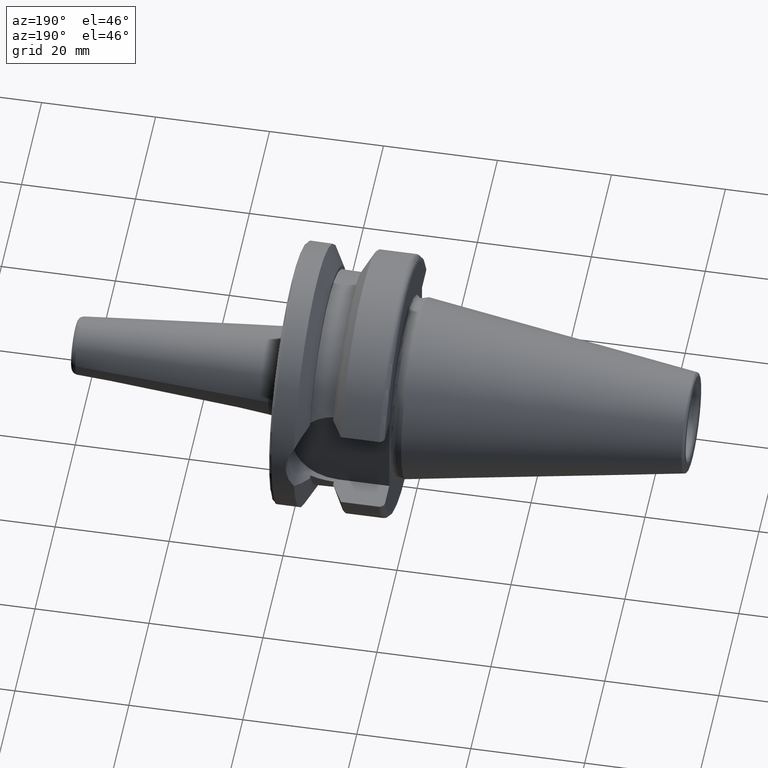
[diagram: clean part render]
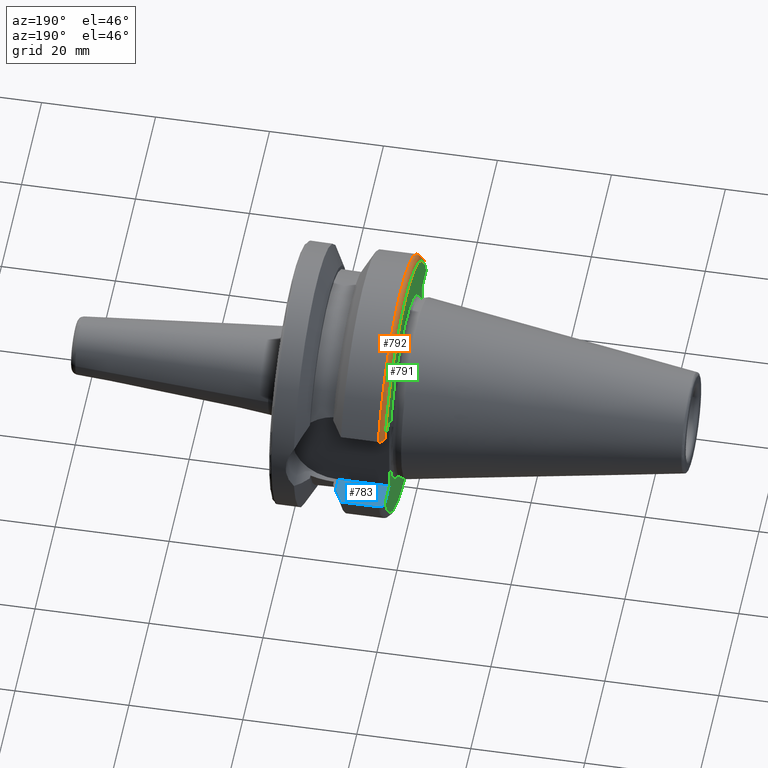
[diagram: same view with three faces highlighted in distinct colors, each labeled with its STEP entity id]
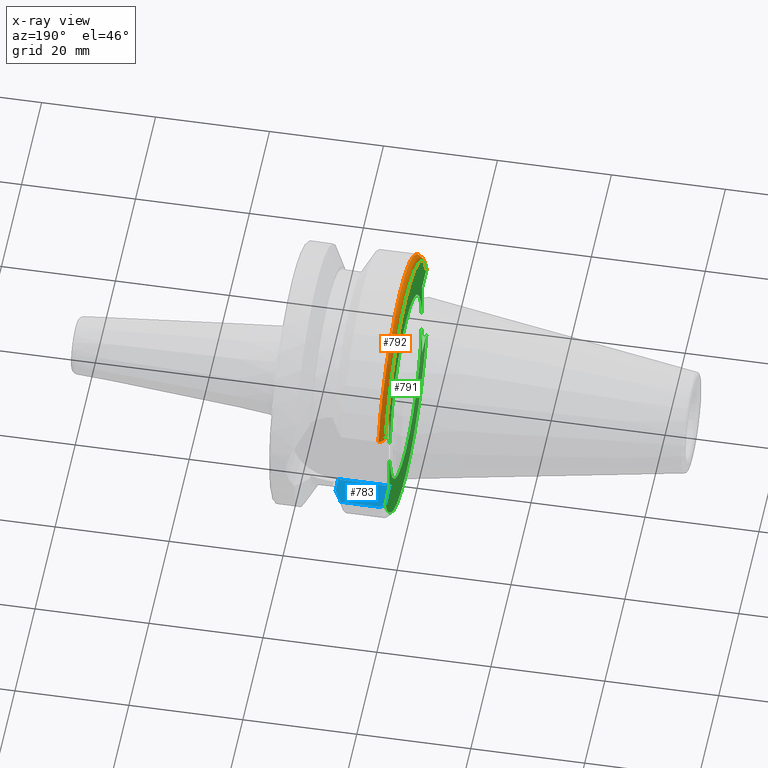
[diagram: x-ray of the same camera — body ghosted, the three highlighted faces saturated]
A machine part, auxiliary view with three faces highlighted in distinct colors.
The next image is the same camera in x-ray (body ghosted, the three faces saturated) — at least one of them is partly hidden behind the body in this view.
Their STEP definitions:

[orange] entity #792 — the highlighted toroidal blend (fillet) surface has major radius 22 mm and minor (blend) radius 1 mm.
#27=B_SPLINE_CURVE_WITH_KNOTS('',3,(#1309,#1310,#1311,#1312,#1313,#1314,
#1315,#1316,#1317,#1318),.UNSPECIFIED.,.F.,.F.,(4,2,2,2,4),(-0.153429778670641,
-0.112799364340696,-0.0737022015264941,-0.0362302924551293,0.),
 .UNSPECIFIED.);
#37=B_SPLINE_CURVE_WITH_KNOTS('',3,(#1458,#1459,#1460,#1461,#1462,#1463,
#1464,#1465,#1466,#1467),.UNSPECIFIED.,.F.,.F.,(4,2,2,2,4),(0.,0.0362302924551293,
0.0737022015264941,0.112799364340696,0.153429778670641),.UNSPECIFIED.);
#193=FACE_OUTER_BOUND('',#243,.T.);
#243=EDGE_LOOP('',(#696,#697,#698,#699));
#301=CIRCLE('',#905,22.);
#302=CIRCLE('',#907,23.);
#347=VERTEX_POINT('',#1306);
#348=VERTEX_POINT('',#1308);
#375=VERTEX_POINT('',#1455);
#376=VERTEX_POINT('',#1457);
#434=EDGE_CURVE('',#348,#347,#27,.T.);
#475=EDGE_CURVE('',#376,#375,#37,.T.);
#494=EDGE_CURVE('',#375,#348,#301,.T.);
#495=EDGE_CURVE('',#376,#347,#302,.T.);
#696=ORIENTED_EDGE('',*,*,#434,.T.);
#697=ORIENTED_EDGE('',*,*,#495,.F.);
#698=ORIENTED_EDGE('',*,*,#475,.T.);
#699=ORIENTED_EDGE('',*,*,#494,.T.);
#755=TOROIDAL_SURFACE('',#906,22.,1.00000000000001);
#792=ADVANCED_FACE('',(#193),#755,.T.);
#905=AXIS2_PLACEMENT_3D('',#1504,#1124,#1125);
#906=AXIS2_PLACEMENT_3D('',#1505,#1126,#1127);
#907=AXIS2_PLACEMENT_3D('',#1506,#1128,#1129);
#1124=DIRECTION('center_axis',(1.,1.62798202122572E-21,0.));
#1125=DIRECTION('ref_axis',(0.,0.,-1.));
#1126=DIRECTION('center_axis',(1.,1.62798202122572E-21,0.));
#1127=DIRECTION('ref_axis',(0.,-1.22464679914735E-16,1.));
#1128=DIRECTION('center_axis',(1.,1.62798202122572E-21,0.));
#1129=DIRECTION('ref_axis',(0.,0.,-1.));
#1306=CARTESIAN_POINT('',(2.99999999999999,-21.5452430944745,8.05));
#1308=CARTESIAN_POINT('',(1.99999999999999,-20.4743131752936,8.05));
#1309=CARTESIAN_POINT('Ctrl Pts',(1.99999999999998,-20.4743131752936,8.05));
#1310=CARTESIAN_POINT('Ctrl Pts',(1.99999999999998,-20.6097478897267,8.05));
#1311=CARTESIAN_POINT('Ctrl Pts',(2.03008808262397,-20.7694601196341,8.05));
#1312=CARTESIAN_POINT('Ctrl Pts',(2.128361602777,-21.0163810455414,8.05));
#1313=CARTESIAN_POINT('Ctrl Pts',(2.21218447849375,-21.1484080721249,8.05));
#1314=CARTESIAN_POINT('Ctrl Pts',(2.38899751698434,-21.3324722583086,8.05));
#1315=CARTESIAN_POINT('Ctrl Pts',(2.5116804691507,-21.4185837950444,8.05));
#1316=CARTESIAN_POINT('Ctrl Pts',(2.73736392622752,-21.5156543568949,8.05));
#1317=CARTESIAN_POINT('Ctrl Pts',(2.87923235848289,-21.5452430944745,8.05));
#1318=CARTESIAN_POINT('Ctrl Pts',(2.99999999999999,-21.5452430944745,8.05));
#1455=CARTESIAN_POINT('',(1.99999999999999,20.4743131752936,8.05));
#1457=CARTESIAN_POINT('',(2.99999999999999,21.5452430944745,8.05));
#1458=CARTESIAN_POINT('Ctrl Pts',(2.99999999999999,21.5452430944745,8.05));
#1459=CARTESIAN_POINT('Ctrl Pts',(2.87923235848289,21.5452430944745,8.05));
#1460=CARTESIAN_POINT('Ctrl Pts',(2.73736392622752,21.5156543568949,8.05));
#1461=CARTESIAN_POINT('Ctrl Pts',(2.5116804691507,21.4185837950444,8.05));
#1462=CARTESIAN_POINT('Ctrl Pts',(2.38899751698434,21.3324722583086,8.05));
#1463=CARTESIAN_POINT('Ctrl Pts',(2.21218447849375,21.1484080721249,8.05));
#1464=CARTESIAN_POINT('Ctrl Pts',(2.128361602777,21.0163810455414,8.05));
#1465=CARTESIAN_POINT('Ctrl Pts',(2.03008808262397,20.7694601196341,8.05));
#1466=CARTESIAN_POINT('Ctrl Pts',(1.99999999999998,20.6097478897267,8.05));
#1467=CARTESIAN_POINT('Ctrl Pts',(1.99999999999998,20.4743131752936,8.05));
#1504=CARTESIAN_POINT('Origin',(1.99999999999999,2.08173882559189E-15,0.));
#1505=CARTESIAN_POINT('Origin',(2.99999999999999,2.08174045357391E-15,0.));
#1506=CARTESIAN_POINT('Origin',(2.99999999999999,2.08174045357391E-15,0.));

[blue] entity #783 — the highlighted planar face has unit normal (0, 0, -1).
#17=(
BOUNDED_CURVE()
B_SPLINE_CURVE(2,(#1395,#1396,#1397),.UNSPECIFIED.,.F.,.F.)
B_SPLINE_CURVE_WITH_KNOTS((3,3),(0.,0.293084380504246),.UNSPECIFIED.)
CURVE()
GEOMETRIC_REPRESENTATION_ITEM()
RATIONAL_B_SPLINE_CURVE((1.,1.00176330634961,1.))
REPRESENTATION_ITEM('')
);
#33=B_SPLINE_CURVE_WITH_KNOTS('',3,(#1409,#1410,#1411,#1412,#1413,#1414,
#1415,#1416,#1417,#1418),.UNSPECIFIED.,.F.,.F.,(4,2,2,2,4),(-0.153429778670641,
-0.112799364340696,-0.073702201526494,-0.0362302924551292,0.),
 .UNSPECIFIED.);
#70=LINE('',#1405,#109);
#71=LINE('',#1421,#110);
#78=LINE('',#1471,#117);
#79=LINE('',#1472,#118);
#109=VECTOR('',#1060,10.);
#110=VECTOR('',#1067,10.);
#117=VECTOR('',#1080,10.);
#118=VECTOR('',#1081,10.);
#152=PLANE('',#885);
#184=FACE_OUTER_BOUND('',#233,.T.);
#233=EDGE_LOOP('',(#649,#650,#651,#652,#653,#654));
#362=VERTEX_POINT('',#1392);
#363=VERTEX_POINT('',#1394);
#364=VERTEX_POINT('',#1403);
#365=VERTEX_POINT('',#1407);
#366=VERTEX_POINT('',#1420);
#377=VERTEX_POINT('',#1470);
#458=EDGE_CURVE('',#362,#363,#17,.T.);
#461=EDGE_CURVE('',#364,#362,#70,.T.);
#463=EDGE_CURVE('',#365,#364,#33,.T.);
#464=EDGE_CURVE('',#366,#363,#71,.T.);
#477=EDGE_CURVE('',#377,#365,#78,.T.);
#478=EDGE_CURVE('',#366,#377,#79,.T.);
#649=ORIENTED_EDGE('',*,*,#458,.F.);
#650=ORIENTED_EDGE('',*,*,#461,.F.);
#651=ORIENTED_EDGE('',*,*,#463,.F.);
#652=ORIENTED_EDGE('',*,*,#477,.F.);
#653=ORIENTED_EDGE('',*,*,#478,.F.);
#654=ORIENTED_EDGE('',*,*,#464,.T.);
#783=ADVANCED_FACE('',(#184),#152,.F.);
#885=AXIS2_PLACEMENT_3D('',#1469,#1078,#1079);
#1060=DIRECTION('',(1.,1.62798202122572E-21,0.));
#1067=DIRECTION('',(0.,1.,0.));
#1078=DIRECTION('center_axis',(4.96189061284986E-16,0.,-1.));
#1079=DIRECTION('ref_axis',(-1.,0.,-4.96189061284986E-16));
#1080=DIRECTION('',(-1.62798202122572E-21,1.,-8.07786870900826E-37));
#1081=DIRECTION('',(-1.,0.,-4.96189061284986E-16));
#1392=CARTESIAN_POINT('',(9.57005904049381,21.5452430944744,-8.05));
#1394=CARTESIAN_POINT('',(10.95,18.9595942383938,-8.05));
#1395=CARTESIAN_POINT('Ctrl Pts',(9.57005904049381,21.5452430944744,-8.05));
#1396=CARTESIAN_POINT('Ctrl Pts',(10.3040741701966,20.181184695873,-8.05));
#1397=CARTESIAN_POINT('Ctrl Pts',(10.95,18.9595942383938,-8.05));
#1403=CARTESIAN_POINT('',(2.99999999999999,21.5452430944745,-8.05));
#1405=CARTESIAN_POINT('',(6.2850295202469,21.5452430944745,-8.05));
#1407=CARTESIAN_POINT('',(1.99999999999999,20.4743131752936,-8.05));
#1409=CARTESIAN_POINT('Ctrl Pts',(1.99999999999998,20.4743131752936,-8.05));
#1410=CARTESIAN_POINT('Ctrl Pts',(1.99999999999998,20.6097478897267,-8.05));
#1411=CARTESIAN_POINT('Ctrl Pts',(2.03008808262397,20.7694601196341,-8.05));
#1412=CARTESIAN_POINT('Ctrl Pts',(2.128361602777,21.0163810455414,-8.05));
#1413=CARTESIAN_POINT('Ctrl Pts',(2.21218447849375,21.1484080721249,-8.05));
#1414=CARTESIAN_POINT('Ctrl Pts',(2.38899751698434,21.3324722583086,-8.05));
#1415=CARTESIAN_POINT('Ctrl Pts',(2.5116804691507,21.4185837950444,-8.05));
#1416=CARTESIAN_POINT('Ctrl Pts',(2.73736392622752,21.5156543568949,-8.05));
#1417=CARTESIAN_POINT('Ctrl Pts',(2.87923235848289,21.5452430944745,-8.05));
#1418=CARTESIAN_POINT('Ctrl Pts',(2.99999999999999,21.5452430944745,-8.05));
#1420=CARTESIAN_POINT('',(10.95,16.3,-8.05));
#1421=CARTESIAN_POINT('',(10.95,16.3,-8.05));
#1469=CARTESIAN_POINT('Origin',(10.95,16.3,-8.05));
#1470=CARTESIAN_POINT('',(1.99999999999999,16.3,-8.05));
#1471=CARTESIAN_POINT('',(1.99999999999999,19.15,-8.05));
#1472=CARTESIAN_POINT('',(10.95,16.3,-8.05));

[green] entity #791 — the highlighted planar face has unit normal (-1, -0, 0).
#61=LINE('',#1320,#100);
#64=LINE('',#1330,#103);
#66=LINE('',#1344,#105);
#76=LINE('',#1456,#115);
#78=LINE('',#1471,#117);
#80=LINE('',#1474,#119);
#100=VECTOR('',#1013,10.);
#103=VECTOR('',#1018,10.);
#105=VECTOR('',#1022,10.);
#115=VECTOR('',#1076,10.);
#117=VECTOR('',#1080,10.);
#119=VECTOR('',#1084,10.);
#141=FACE_BOUND('',#242,.T.);
#154=PLANE('',#904);
#192=FACE_OUTER_BOUND('',#241,.T.);
#241=EDGE_LOOP('',(#687,#688,#689,#690,#691,#692,#693,#694));
#242=EDGE_LOOP('',(#695));
#288=CIRCLE('',#881,22.);
#300=CIRCLE('',#903,16.1);
#301=CIRCLE('',#905,22.);
#348=VERTEX_POINT('',#1308);
#349=VERTEX_POINT('',#1319);
#351=VERTEX_POINT('',#1327);
#352=VERTEX_POINT('',#1329);
#365=VERTEX_POINT('',#1407);
#374=VERTEX_POINT('',#1453);
#375=VERTEX_POINT('',#1455);
#377=VERTEX_POINT('',#1470);
#385=VERTEX_POINT('',#1500);
#435=EDGE_CURVE('',#349,#348,#61,.T.);
#439=EDGE_CURVE('',#352,#351,#64,.T.);
#442=EDGE_CURVE('',#351,#349,#66,.T.);
#462=EDGE_CURVE('',#352,#365,#288,.T.);
#474=EDGE_CURVE('',#375,#374,#76,.T.);
#477=EDGE_CURVE('',#377,#365,#78,.T.);
#479=EDGE_CURVE('',#374,#377,#80,.T.);
#493=EDGE_CURVE('',#385,#385,#300,.T.);
#494=EDGE_CURVE('',#375,#348,#301,.T.);
#687=ORIENTED_EDGE('',*,*,#435,.T.);
#688=ORIENTED_EDGE('',*,*,#494,.F.);
#689=ORIENTED_EDGE('',*,*,#474,.T.);
#690=ORIENTED_EDGE('',*,*,#479,.T.);
#691=ORIENTED_EDGE('',*,*,#477,.T.);
#692=ORIENTED_EDGE('',*,*,#462,.F.);
#693=ORIENTED_EDGE('',*,*,#439,.T.);
#694=ORIENTED_EDGE('',*,*,#442,.T.);
#695=ORIENTED_EDGE('',*,*,#493,.T.);
#791=ADVANCED_FACE('',(#192,#141),#154,.T.);
#881=AXIS2_PLACEMENT_3D('',#1408,#1063,#1064);
#903=AXIS2_PLACEMENT_3D('',#1502,#1120,#1121);
#904=AXIS2_PLACEMENT_3D('',#1503,#1122,#1123);
#905=AXIS2_PLACEMENT_3D('',#1504,#1124,#1125);
#1013=DIRECTION('',(1.62798202122572E-21,-1.,0.));
#1018=DIRECTION('',(-1.62798202122572E-21,1.,-8.07786870900826E-37));
#1022=DIRECTION('',(0.,0.,1.));
#1063=DIRECTION('center_axis',(1.,1.62798202122572E-21,0.));
#1064=DIRECTION('ref_axis',(0.,0.,-1.));
#1076=DIRECTION('',(1.62798202122572E-21,-1.,0.));
#1080=DIRECTION('',(-1.62798202122572E-21,1.,-8.07786870900826E-37));
#1084=DIRECTION('',(0.,0.,-1.));
#1120=DIRECTION('center_axis',(1.,1.62798202122572E-21,0.));
#1121=DIRECTION('ref_axis',(0.,0.,-1.));
#1122=DIRECTION('center_axis',(-1.,-1.62798202122572E-21,0.));
#1123=DIRECTION('ref_axis',(0.,0.,1.));
#1124=DIRECTION('center_axis',(1.,1.62798202122572E-21,0.));
#1125=DIRECTION('ref_axis',(0.,0.,-1.));
#1308=CARTESIAN_POINT('',(1.99999999999999,-20.4743131752936,8.05));
#1319=CARTESIAN_POINT('',(1.99999999999999,-16.3,8.05));
#1320=CARTESIAN_POINT('',(1.99999999999999,2.85,8.05));
#1327=CARTESIAN_POINT('',(1.99999999999999,-16.3,-8.05));
#1329=CARTESIAN_POINT('',(1.99999999999999,-20.4743131752936,-8.05));
#1330=CARTESIAN_POINT('',(1.99999999999999,2.85,-8.05));
#1344=CARTESIAN_POINT('',(1.99999999999999,-16.3,0.));
#1407=CARTESIAN_POINT('',(1.99999999999999,20.4743131752936,-8.05));
#1408=CARTESIAN_POINT('Origin',(1.99999999999999,2.08173882559189E-15,0.));
#1453=CARTESIAN_POINT('',(1.99999999999999,16.3,8.05));
#1455=CARTESIAN_POINT('',(1.99999999999999,20.4743131752936,8.05));
#1456=CARTESIAN_POINT('',(1.99999999999999,19.15,8.05));
#1470=CARTESIAN_POINT('',(1.99999999999999,16.3,-8.05));
#1471=CARTESIAN_POINT('',(1.99999999999999,19.15,-8.05));
#1474=CARTESIAN_POINT('',(1.99999999999999,16.3,0.));
#1500=CARTESIAN_POINT('',(1.99999999999999,1.10057478964651E-16,16.1));
#1502=CARTESIAN_POINT('Origin',(1.99999999999999,2.08173882559189E-15,0.));
#1503=CARTESIAN_POINT('Origin',(1.99999999999999,22.,0.));
#1504=CARTESIAN_POINT('Origin',(1.99999999999999,2.08173882559189E-15,0.));